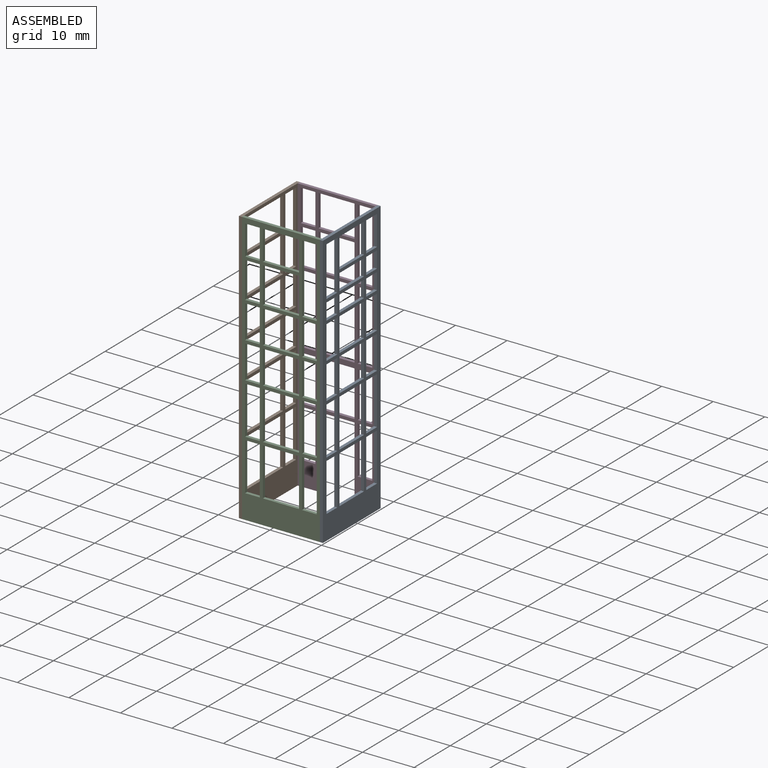
[diagram: assembled view]
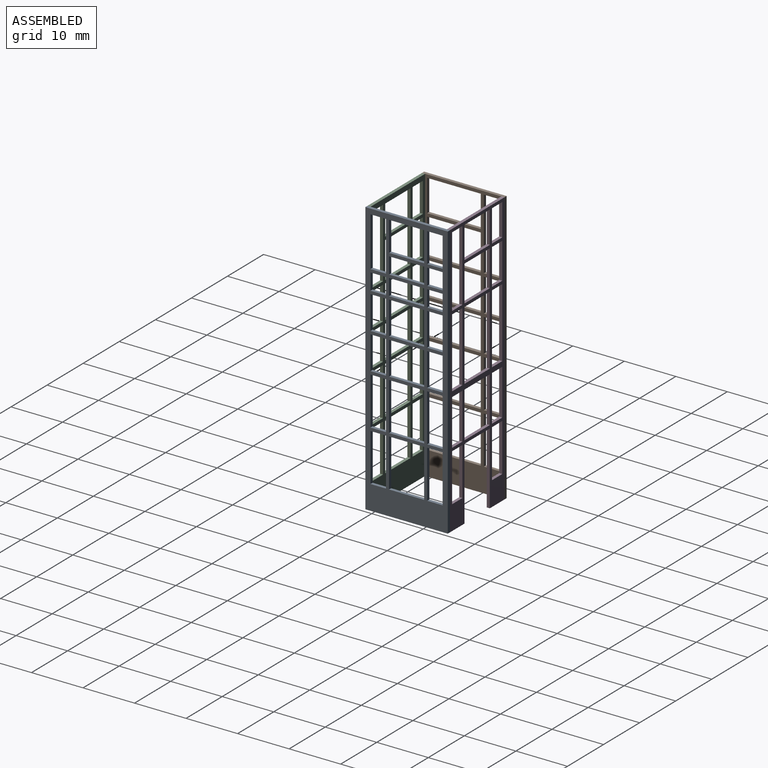
[diagram: assembled view, second angle]
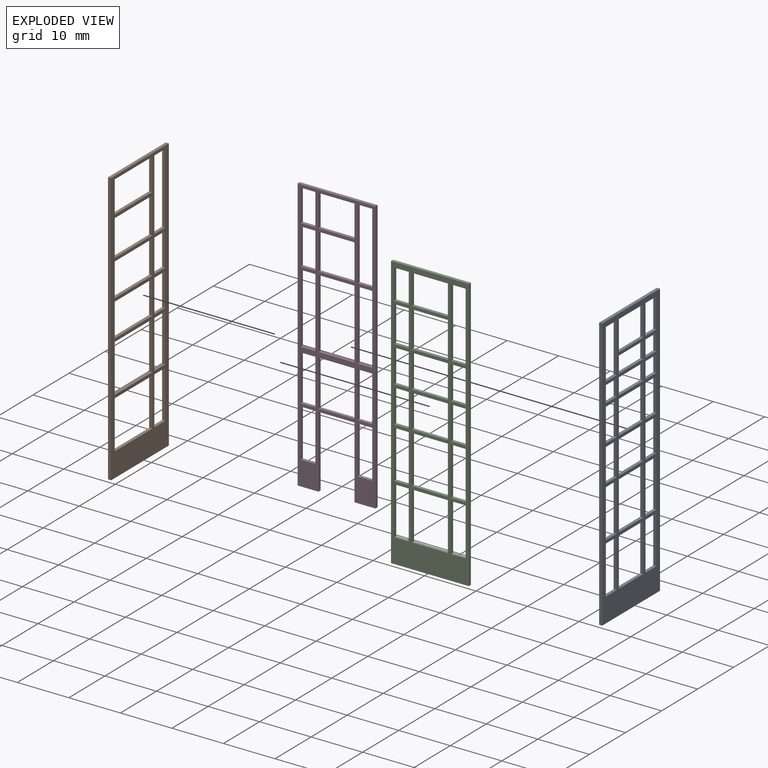
[diagram: exploded view]
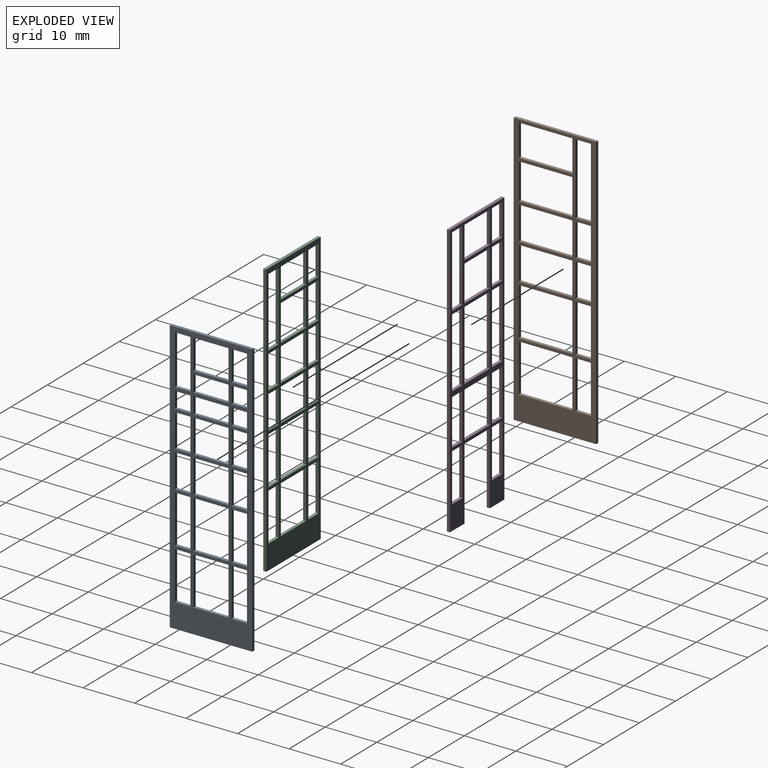
[diagram: exploded view, second angle]
ASSEMBLY  parts=4 mates=3
PART A: 86 faces, bbox 16x0.6x53 mm
  f0: plane 53x16mm, normal (0,-1,0), area 286.8mm2, adj f2,f3,f4,f5,f6,f7,f8,f9
  f1: plane 53x16mm, normal (0,1,0), area 286.8mm2, adj f2,f3,f4,f5,f6,f7,f8,f9
  f2: plane 9.3x0.6mm, normal (-1,0,0), area 5.6mm2, adj f0,f1,f3,f16
  f3: plane 6.8x0.6mm, normal (0,0,1), area 4.1mm2, adj f0,f1,f2,f4
  f4: plane 9.3x0.6mm, normal (1,0,0), area 5.6mm2, adj f0,f1,f3,f16
  f5: plane 9.3x0.6mm, normal (1,0,0), area 5.6mm2, adj f0,f1,f6,f14
  f6: plane 3x0.6mm, normal (0,0,-1), area 1.8mm2, adj f0,f1,f5,f7
  f7: plane 9.3x0.6mm, normal (-1,0,0), area 5.6mm2, adj f0,f1,f6,f14
  f8: plane 9.3x0.6mm, normal (1,0,0), area 5.6mm2, adj f0,f1,f9,f15
  f9: plane 3x0.6mm, normal (0,0,-1), area 1.8mm2, adj f0,f1,f8,f10
  f10: plane 9.3x0.6mm, normal (-1,0,0), area 5.6mm2, adj f0,f1,f9,f15
  f11: plane 53x0.6mm, normal (-1,0,0), area 31.8mm2, adj f0,f1,f12,f85
  f12: plane 16x0.6mm, normal (0,0,-1), area 9.6mm2, adj f0,f1,f11,f13
  f13: plane 53x0.6mm, normal (1,0,0), area 31.8mm2, adj f0,f1,f12,f85
  f14: plane 3x0.6mm, normal (0,0,1), area 1.8mm2, adj f0,f1,f5,f7
  f15: plane 3x0.6mm, normal (0,0,1), area 1.8mm2, adj f0,f1,f8,f10
  f16: plane 6.8x0.6mm, normal (0,0,-1), area 4.1mm2, adj f0,f1,f2,f4
  f17: plane 6.45x0.6mm, normal (1,0,0), area 3.9mm2, adj f0,f1,f18,f19
  f18: plane 3x0.6mm, normal (0,0,-1), area 1.8mm2, adj f0,f1,f17,f20
  f19: plane 3x0.6mm, normal (0,0,1), area 1.8mm2, adj f0,f1,f17,f20
  f20: plane 6.45x0.6mm, normal (-1,0,0), area 3.9mm2, adj f0,f1,f18,f19
  f21: plane 9.3x0.6mm, normal (-1,0,0), area 5.6mm2, adj f0,f1,f22,f23
  f22: plane 3x0.6mm, normal (0,0,1), area 1.8mm2, adj f0,f1,f21,f24
  f23: plane 3x0.6mm, normal (0,0,-1), area 1.8mm2, adj f0,f1,f21,f24
  f24: plane 9.3x0.6mm, normal (1,0,0), area 5.6mm2, adj f0,f1,f22,f23
  f25: plane 6.8x0.6mm, normal (0,0,-1), area 4.1mm2, adj f0,f1,f26,f27
  f26: plane 9.3x0.6mm, normal (-1,0,0), area 5.6mm2, adj f0,f1,f25,f28
  f27: plane 9.3x0.6mm, normal (1,0,0), area 5.6mm2, adj f0,f1,f25,f28
  f28: plane 6.8x0.6mm, normal (0,0,1), area 4.1mm2, adj f0,f1,f26,f27
  f29: plane 3x0.6mm, normal (0,0,-1), area 1.8mm2, adj f0,f1,f30,f31
  f30: plane 9.3x0.6mm, normal (-1,0,0), area 5.6mm2, adj f0,f1,f29,f32
  f31: plane 9.3x0.6mm, normal (1,0,0), area 5.6mm2, adj f0,f1,f29,f32
  f32: plane 3x0.6mm, normal (0,0,1), area 1.8mm2, adj f0,f1,f30,f31
  f33: plane 6.45x0.6mm, normal (-1,0,0), area 3.9mm2, adj f0,f1,f34,f36
  f34: plane 3x0.6mm, normal (0,0,-1), area 1.8mm2, adj f0,f1,f33,f35
  f35: plane 6.45x0.6mm, normal (1,0,0), area 3.9mm2, adj f0,f1,f34,f36
  f36: plane 3x0.6mm, normal (0,0,1), area 1.8mm2, adj f0,f1,f33,f35
  f37: plane 6.45x0.6mm, normal (-1,0,0), area 3.9mm2, adj f0,f1,f38,f40
  f38: plane 3x0.6mm, normal (0,0,-1), area 1.8mm2, adj f0,f1,f37,f39
  f39: plane 6.45x0.6mm, normal (1,0,0), area 3.9mm2, adj f0,f1,f38,f40
  f40: plane 3x0.6mm, normal (0,0,1), area 1.8mm2, adj f0,f1,f37,f39
  f41: plane 6.45x0.6mm, normal (1,0,0), area 3.9mm2, adj f0,f1,f42,f43
  f42: plane 6.8x0.6mm, normal (0,0,-1), area 4.1mm2, adj f0,f1,f41,f44
  f43: plane 6.8x0.6mm, normal (0,0,1), area 4.1mm2, adj f0,f1,f41,f44
  f44: plane 6.45x0.6mm, normal (-1,0,0), area 3.9mm2, adj f0,f1,f42,f43
  f45: plane 6.45x0.6mm, normal (1,0,0), area 3.9mm2, adj f0,f1,f46,f47
  f46: plane 6.8x0.6mm, normal (0,0,-1), area 4.1mm2, adj f0,f1,f45,f48
  f47: plane 6.8x0.6mm, normal (0,0,1), area 4.1mm2, adj f0,f1,f45,f48
  f48: plane 6.45x0.6mm, normal (-1,0,0), area 3.9mm2, adj f0,f1,f46,f47
  f49: plane 6.45x0.6mm, normal (-1,0,0), area 3.9mm2, adj f0,f1,f50,f52
  f50: plane 3x0.6mm, normal (0,0,-1), area 1.8mm2, adj f0,f1,f49,f51
  f51: plane 6.45x0.6mm, normal (1,0,0), area 3.9mm2, adj f0,f1,f50,f52
  f52: plane 3x0.6mm, normal (0,0,1), area 1.8mm2, adj f0,f1,f49,f51
  f53: plane 5.8x0.6mm, normal (1,0,0), area 3.5mm2, adj f0,f1,f54,f55
  f54: plane 3x0.6mm, normal (0,0,-1), area 1.8mm2, adj f0,f1,f53,f56
  f55: plane 3x0.6mm, normal (0,0,1), area 1.8mm2, adj f0,f1,f53,f56
  f56: plane 5.8x0.6mm, normal (-1,0,0), area 3.5mm2, adj f0,f1,f54,f55
  f57: plane 3.2x0.6mm, normal (1,0,0), area 1.9mm2, adj f0,f1,f58,f59
  f58: plane 6.8x0.6mm, normal (0,0,-1), area 4.1mm2, adj f0,f1,f57,f60
  f59: plane 6.8x0.6mm, normal (0,0,1), area 4.1mm2, adj f0,f1,f57,f60
  f60: plane 3.2x0.6mm, normal (-1,0,0), area 1.9mm2, adj f0,f1,f58,f59
  f61: plane 5.8x0.6mm, normal (1,0,0), area 3.5mm2, adj f0,f1,f62,f63
  f62: plane 6.8x0.6mm, normal (0,0,-1), area 4.1mm2, adj f0,f1,f61,f64
  f63: plane 6.8x0.6mm, normal (0,0,1), area 4.1mm2, adj f0,f1,f61,f64
  f64: plane 5.8x0.6mm, normal (-1,0,0), area 3.5mm2, adj f0,f1,f62,f63
  f65: plane 9.6x0.6mm, normal (1,0,0), area 5.8mm2, adj f0,f1,f66,f67
  f66: plane 3x0.6mm, normal (0,0,-1), area 1.8mm2, adj f0,f1,f65,f68
  f67: plane 3x0.6mm, normal (0,0,1), area 1.8mm2, adj f0,f1,f65,f68
  f68: plane 9.6x0.6mm, normal (-1,0,0), area 5.8mm2, adj f0,f1,f66,f67
  f69: plane 3.2x0.6mm, normal (1,0,0), area 1.9mm2, adj f0,f1,f70,f71
  f70: plane 3x0.6mm, normal (0,0,-1), area 1.8mm2, adj f0,f1,f69,f72
  f71: plane 3x0.6mm, normal (0,0,1), area 1.8mm2, adj f0,f1,f69,f72
  f72: plane 3.2x0.6mm, normal (-1,0,0), area 1.9mm2, adj f0,f1,f70,f71
  f73: plane 3.2x0.6mm, normal (1,0,0), area 1.9mm2, adj f0,f1,f74,f75
  f74: plane 3x0.6mm, normal (0,0,-1), area 1.8mm2, adj f0,f1,f73,f76
  f75: plane 3x0.6mm, normal (0,0,1), area 1.8mm2, adj f0,f1,f73,f76
  f76: plane 3.2x0.6mm, normal (-1,0,0), area 1.9mm2, adj f0,f1,f74,f75
  f77: plane 3.2x0.6mm, normal (1,0,0), area 1.9mm2, adj f0,f1,f78,f79
  f78: plane 6.8x0.6mm, normal (0,0,-1), area 4.1mm2, adj f0,f1,f77,f80
  f79: plane 6.8x0.6mm, normal (0,0,1), area 4.1mm2, adj f0,f1,f77,f80
  f80: plane 3.2x0.6mm, normal (-1,0,0), area 1.9mm2, adj f0,f1,f78,f79
  f81: plane 3.2x0.6mm, normal (1,0,0), area 1.9mm2, adj f0,f1,f82,f83
  f82: plane 3x0.6mm, normal (0,0,-1), area 1.8mm2, adj f0,f1,f81,f84
  f83: plane 3x0.6mm, normal (0,0,1), area 1.8mm2, adj f0,f1,f81,f84
  f84: plane 3.2x0.6mm, normal (-1,0,0), area 1.9mm2, adj f0,f1,f82,f83
  f85: plane 16x0.6mm, normal (0,0,1), area 9.6mm2, adj f0,f1,f11,f13
PART B: 50 faces, bbox 16x0.6x53 mm
  f0: plane 53x16mm, normal (0,-1,0), area 247.2mm2, adj f1,f2,f3,f4,f5,f6,f7,f8
  f1: plane 53x0.6mm, normal (-1,0,0), area 31.8mm2, adj f0,f2,f10,f42
  f2: plane 16x0.6mm, normal (0,0,-1), area 9.6mm2, adj f0,f1,f10,f49
  f3: plane 10.4x0.6mm, normal (0,0,1), area 6.2mm2, adj f0,f4,f10,f48
  f4: plane 9.3x0.6mm, normal (1,0,0), area 5.6mm2, adj f0,f3,f5,f10
  f5: plane 10.4x0.6mm, normal (0,0,-1), area 6.2mm2, adj f0,f4,f10,f48
  f6: plane 9.3x0.6mm, normal (1,0,0), area 5.6mm2, adj f0,f7,f9,f10
  f7: plane 3x0.6mm, normal (0,0,-1), area 1.8mm2, adj f0,f6,f8,f10
  f8: plane 9.3x0.6mm, normal (-1,0,0), area 5.6mm2, adj f0,f7,f9,f10
  f9: plane 3x0.6mm, normal (0,0,1), area 1.8mm2, adj f0,f6,f8,f10
  f10: plane 53x16mm, normal (0,1,0), area 247.2mm2, adj f1,f2,f3,f4,f5,f6,f7,f8
  f11: plane 6.45x0.6mm, normal (1,0,0), area 3.9mm2, adj f0,f10,f12,f13
  f12: plane 3x0.6mm, normal (0,0,-1), area 1.8mm2, adj f0,f10,f11,f14
  f13: plane 3x0.6mm, normal (0,0,1), area 1.8mm2, adj f0,f10,f11,f14
  f14: plane 6.45x0.6mm, normal (-1,0,0), area 3.9mm2, adj f0,f10,f12,f13
  f15: plane 10.4x0.6mm, normal (0,0,-1), area 6.2mm2, adj f0,f10,f16,f44
  f16: plane 6.45x0.6mm, normal (1,0,0), area 3.9mm2, adj f0,f10,f15,f17
  f17: plane 10.4x0.6mm, normal (0,0,1), area 6.2mm2, adj f0,f10,f16,f44
  f18: plane 13.8x0.6mm, normal (1,0,0), area 8.3mm2, adj f0,f10,f19,f20
  f19: plane 3x0.6mm, normal (0,0,-1), area 1.8mm2, adj f0,f10,f18,f21
  f20: plane 3x0.6mm, normal (0,0,1), area 1.8mm2, adj f0,f10,f18,f21
  f21: plane 13.8x0.6mm, normal (-1,0,0), area 8.3mm2, adj f0,f10,f19,f20
  f22: plane 10.4x0.6mm, normal (0,0,-1), area 6.2mm2, adj f0,f10,f23,f46
  f23: plane 7x0.6mm, normal (1,0,0), area 4.2mm2, adj f0,f10,f22,f24
  f24: plane 10.4x0.6mm, normal (0,0,1), area 6.2mm2, adj f0,f10,f23,f46
  f25: plane 10.4x0.6mm, normal (0,0,-1), area 6.2mm2, adj f0,f10,f26,f45
  f26: plane 6.2x0.6mm, normal (1,0,0), area 3.7mm2, adj f0,f10,f25,f27
  f27: plane 10.4x0.6mm, normal (0,0,1), area 6.2mm2, adj f0,f10,f26,f45
  f28: plane 10.4x0.6mm, normal (0,0,-1), area 6.2mm2, adj f0,f10,f29,f43
  f29: plane 6.45x0.6mm, normal (1,0,0), area 3.9mm2, adj f0,f10,f28,f30
  f30: plane 10.4x0.6mm, normal (0,0,1), area 6.2mm2, adj f0,f10,f29,f43
  f31: plane 9.3x0.6mm, normal (1,0,0), area 5.6mm2, adj f0,f10,f32,f33
  f32: plane 3x0.6mm, normal (0,0,-1), area 1.8mm2, adj f0,f10,f31,f34
  f33: plane 3x0.6mm, normal (0,0,1), area 1.8mm2, adj f0,f10,f31,f34
  f34: plane 9.3x0.6mm, normal (-1,0,0), area 5.6mm2, adj f0,f10,f32,f33
  f35: plane 10.4x0.6mm, normal (0,0,-1), area 6.2mm2, adj f0,f10,f36,f47
  f36: plane 9.3x0.6mm, normal (1,0,0), area 5.6mm2, adj f0,f10,f35,f37
  f37: plane 10.4x0.6mm, normal (0,0,1), area 6.2mm2, adj f0,f10,f36,f47
  f38: plane 6.45x0.6mm, normal (1,0,0), area 3.9mm2, adj f0,f10,f39,f40
  f39: plane 3x0.6mm, normal (0,0,-1), area 1.8mm2, adj f0,f10,f38,f41
  f40: plane 3x0.6mm, normal (0,0,1), area 1.8mm2, adj f0,f10,f38,f41
  f41: plane 6.45x0.6mm, normal (-1,0,0), area 3.9mm2, adj f0,f10,f39,f40
  f42: plane 16x0.6mm, normal (0,0,1), area 9.6mm2, adj f0,f1,f10,f49
  f43: plane 6.45x0.6mm, normal (-1,0,0), area 3.9mm2, adj f0,f10,f28,f30
  f44: plane 6.45x0.6mm, normal (-1,0,0), area 3.9mm2, adj f0,f10,f15,f17
  f45: plane 6.2x0.6mm, normal (-1,0,0), area 3.7mm2, adj f0,f10,f25,f27
  f46: plane 7x0.6mm, normal (-1,0,0), area 4.2mm2, adj f0,f10,f22,f24
  f47: plane 9.3x0.6mm, normal (-1,0,0), area 5.6mm2, adj f0,f10,f35,f37
  f48: plane 9.3x0.6mm, normal (-1,0,0), area 5.6mm2, adj f0,f3,f5,f10
  f49: plane 53x0.6mm, normal (1,0,0), area 31.8mm2, adj f0,f2,f10,f42
PART C: 74 faces, bbox 15.1x0.6x53 mm
  f0: plane 53x15.1mm, normal (0,-1,0), area 236mm2, adj f2,f3,f4,f5,f6,f7,f8,f9
  f1: plane 53x15.1mm, normal (0,1,0), area 236mm2, adj f2,f3,f4,f5,f6,f7,f8,f9
  f2: plane 7x0.6mm, normal (0,0,1), area 4.2mm2, adj f0,f1,f3,f14
  f3: plane 9.3x0.6mm, normal (1,0,0), area 5.6mm2, adj f0,f1,f2,f4
  f4: plane 7x0.6mm, normal (0,0,-1), area 4.2mm2, adj f0,f1,f3,f14
  f5: plane 53x0.6mm, normal (-1,0,0), area 31.8mm2, adj f0,f1,f6,f67
  f6: plane 15.1x0.6mm, normal (0,0,-1), area 9.1mm2, adj f0,f1,f5,f73
  f7: plane 2.85x0.6mm, normal (0,0,1), area 1.7mm2, adj f0,f1,f8,f72
  f8: plane 9.3x0.6mm, normal (1,0,0), area 5.6mm2, adj f0,f1,f7,f9
  f9: plane 2.85x0.6mm, normal (0,0,-1), area 1.7mm2, adj f0,f1,f8,f72
  f10: plane 9.3x0.6mm, normal (1,0,0), area 5.6mm2, adj f0,f1,f11,f13
  f11: plane 2.85x0.6mm, normal (0,0,-1), area 1.7mm2, adj f0,f1,f10,f12
  f12: plane 9.3x0.6mm, normal (-1,0,0), area 5.6mm2, adj f0,f1,f11,f13
  f13: plane 2.85x0.6mm, normal (0,0,1), area 1.7mm2, adj f0,f1,f10,f12
  f14: plane 9.3x0.6mm, normal (-1,0,0), area 5.6mm2, adj f0,f1,f2,f4
  f15: plane 6.45x0.6mm, normal (1,0,0), area 3.9mm2, adj f0,f1,f16,f17
  f16: plane 2.85x0.6mm, normal (0,0,-1), area 1.7mm2, adj f0,f1,f15,f18
  f17: plane 2.85x0.6mm, normal (0,0,1), area 1.7mm2, adj f0,f1,f15,f18
  f18: plane 6.45x0.6mm, normal (-1,0,0), area 3.9mm2, adj f0,f1,f16,f17
  f19: plane 2.85x0.6mm, normal (0,0,-1), area 1.7mm2, adj f0,f1,f20,f71
  f20: plane 9.3x0.6mm, normal (1,0,0), area 5.6mm2, adj f0,f1,f19,f21
  f21: plane 2.85x0.6mm, normal (0,0,1), area 1.7mm2, adj f0,f1,f20,f71
  f22: plane 6.45x0.6mm, normal (1,0,0), area 3.9mm2, adj f0,f1,f23,f24
  f23: plane 2.85x0.6mm, normal (0,0,-1), area 1.7mm2, adj f0,f1,f22,f25
  f24: plane 2.85x0.6mm, normal (0,0,1), area 1.7mm2, adj f0,f1,f22,f25
  f25: plane 6.45x0.6mm, normal (-1,0,0), area 3.9mm2, adj f0,f1,f23,f24
  f26: plane 6.45x0.6mm, normal (1,0,0), area 3.9mm2, adj f0,f1,f27,f28
  f27: plane 7x0.6mm, normal (0,0,-1), area 4.2mm2, adj f0,f1,f26,f29
  f28: plane 7x0.6mm, normal (0,0,1), area 4.2mm2, adj f0,f1,f26,f29
  f29: plane 6.45x0.6mm, normal (-1,0,0), area 3.9mm2, adj f0,f1,f27,f28
  f30: plane 2.85x0.6mm, normal (0,0,-1), area 1.7mm2, adj f0,f1,f31,f68
  f31: plane 6.45x0.6mm, normal (1,0,0), area 3.9mm2, adj f0,f1,f30,f32
  f32: plane 2.85x0.6mm, normal (0,0,1), area 1.7mm2, adj f0,f1,f31,f68
  f33: plane 9.3x0.6mm, normal (1,0,0), area 5.6mm2, adj f0,f1,f34,f35
  f34: plane 7x0.6mm, normal (0,0,-1), area 4.2mm2, adj f0,f1,f33,f36
  f35: plane 7x0.6mm, normal (0,0,1), area 4.2mm2, adj f0,f1,f33,f36
  f36: plane 9.3x0.6mm, normal (-1,0,0), area 5.6mm2, adj f0,f1,f34,f35
  f37: plane 9.3x0.6mm, normal (1,0,0), area 5.6mm2, adj f0,f1,f38,f39
  f38: plane 2.85x0.6mm, normal (0,0,-1), area 1.7mm2, adj f0,f1,f37,f40
  f39: plane 2.85x0.6mm, normal (0,0,1), area 1.7mm2, adj f0,f1,f37,f40
  f40: plane 9.3x0.6mm, normal (-1,0,0), area 5.6mm2, adj f0,f1,f38,f39
  f41: plane 2.85x0.6mm, normal (0,0,-1), area 1.7mm2, adj f0,f1,f42,f70
  f42: plane 6.45x0.6mm, normal (1,0,0), area 3.9mm2, adj f0,f1,f41,f43
  f43: plane 2.85x0.6mm, normal (0,0,1), area 1.7mm2, adj f0,f1,f42,f70
  f44: plane 6.45x0.6mm, normal (1,0,0), area 3.9mm2, adj f0,f1,f45,f46
  f45: plane 7x0.6mm, normal (0,0,-1), area 4.2mm2, adj f0,f1,f44,f47
  f46: plane 7x0.6mm, normal (0,0,1), area 4.2mm2, adj f0,f1,f44,f47
  f47: plane 6.45x0.6mm, normal (-1,0,0), area 3.9mm2, adj f0,f1,f45,f46
  f48: plane 2.85x0.6mm, normal (0,0,-1), area 1.7mm2, adj f0,f1,f49,f50
  f49: plane 5.8x0.6mm, normal (-1,0,0), area 3.5mm2, adj f0,f1,f48,f51
  f50: plane 5.8x0.6mm, normal (1,0,0), area 3.5mm2, adj f0,f1,f48,f51
  f51: plane 2.85x0.6mm, normal (0,0,1), area 1.7mm2, adj f0,f1,f49,f50
  f52: plane 7x0.6mm, normal (1,0,0), area 4.2mm2, adj f0,f1,f53,f54
  f53: plane 2.85x0.6mm, normal (0,0,-1), area 1.7mm2, adj f0,f1,f52,f55
  f54: plane 2.85x0.6mm, normal (0,0,1), area 1.7mm2, adj f0,f1,f52,f55
  f55: plane 7x0.6mm, normal (-1,0,0), area 4.2mm2, adj f0,f1,f53,f54
  f56: plane 7x0.6mm, normal (1,0,0), area 4.2mm2, adj f0,f1,f57,f58
  f57: plane 7x0.6mm, normal (0,0,-1), area 4.2mm2, adj f0,f1,f56,f59
  f58: plane 7x0.6mm, normal (0,0,1), area 4.2mm2, adj f0,f1,f56,f59
  f59: plane 7x0.6mm, normal (-1,0,0), area 4.2mm2, adj f0,f1,f57,f58
  f60: plane 2.85x0.6mm, normal (0,0,-1), area 1.7mm2, adj f0,f1,f61,f69
  f61: plane 13.4x0.6mm, normal (1,0,0), area 8mm2, adj f0,f1,f60,f62
  f62: plane 2.85x0.6mm, normal (0,0,1), area 1.7mm2, adj f0,f1,f61,f69
  f63: plane 7x0.6mm, normal (0,0,-1), area 4.2mm2, adj f0,f1,f64,f65
  f64: plane 5.8x0.6mm, normal (-1,0,0), area 3.5mm2, adj f0,f1,f63,f66
  f65: plane 5.8x0.6mm, normal (1,0,0), area 3.5mm2, adj f0,f1,f63,f66
  f66: plane 7x0.6mm, normal (0,0,1), area 4.2mm2, adj f0,f1,f64,f65
  f67: plane 15.1x0.6mm, normal (0,0,1), area 9.1mm2, adj f0,f1,f5,f73
  f68: plane 6.45x0.6mm, normal (-1,0,0), area 3.9mm2, adj f0,f1,f30,f32
  f69: plane 13.4x0.6mm, normal (-1,0,0), area 8mm2, adj f0,f1,f60,f62
  f70: plane 6.45x0.6mm, normal (-1,0,0), area 3.9mm2, adj f0,f1,f41,f43
  f71: plane 9.3x0.6mm, normal (-1,0,0), area 5.6mm2, adj f0,f1,f19,f21
  f72: plane 9.3x0.6mm, normal (-1,0,0), area 5.6mm2, adj f0,f1,f7,f9
  f73: plane 53x0.6mm, normal (1,0,0), area 31.8mm2, adj f0,f1,f6,f67
PART D: 62 faces, bbox 15.1x0.6x53 mm
  f0: plane 53x15.1mm, normal (0,-1,0), area 195.5mm2, adj f2,f3,f4,f5,f6,f7,f8,f9
  f1: plane 53x15.1mm, normal (0,1,0), area 195.5mm2, adj f2,f3,f4,f5,f6,f7,f8,f9
  f2: plane 53x0.6mm, normal (-1,0,0), area 31.8mm2, adj f0,f1,f3,f56
  f3: plane 4.05x0.6mm, normal (0,0,-1), area 2.4mm2, adj f0,f1,f2,f4
  f4: plane 14x0.6mm, normal (1,0,0), area 8.4mm2, adj f0,f1,f3,f5
  f5: plane 7x0.6mm, normal (0,0,-1), area 4.2mm2, adj f0,f1,f4,f6
  f6: plane 14x0.6mm, normal (-1,0,0), area 8.4mm2, adj f0,f1,f5,f7
  f7: plane 4.05x0.6mm, normal (0,0,-1), area 2.4mm2, adj f0,f1,f6,f61
  f8: plane 2.85x0.6mm, normal (0,0,1), area 1.7mm2, adj f0,f1,f9,f60
  f9: plane 9.3x0.6mm, normal (1,0,0), area 5.6mm2, adj f0,f1,f8,f10
  f10: plane 2.85x0.6mm, normal (0,0,-1), area 1.7mm2, adj f0,f1,f9,f60
  f11: plane 9.3x0.6mm, normal (1,0,0), area 5.6mm2, adj f0,f1,f12,f14
  f12: plane 2.85x0.6mm, normal (0,0,-1), area 1.7mm2, adj f0,f1,f11,f13
  f13: plane 9.3x0.6mm, normal (-1,0,0), area 5.6mm2, adj f0,f1,f12,f14
  f14: plane 2.85x0.6mm, normal (0,0,1), area 1.7mm2, adj f0,f1,f11,f13
  f15: plane 2.85x0.6mm, normal (0,0,1), area 1.7mm2, adj f0,f1,f16,f17
  f16: plane 13.5x0.6mm, normal (1,0,0), area 8.1mm2, adj f0,f1,f15,f18
  f17: plane 13.5x0.6mm, normal (-1,0,0), area 8.1mm2, adj f0,f1,f15,f18
  f18: plane 2.85x0.6mm, normal (0,0,-1), area 1.7mm2, adj f0,f1,f16,f17
  f19: plane 6.2x0.6mm, normal (1,0,0), area 3.7mm2, adj f0,f1,f20,f21
  f20: plane 2.85x0.6mm, normal (0,0,-1), area 1.7mm2, adj f0,f1,f19,f22
  f21: plane 2.85x0.6mm, normal (0,0,1), area 1.7mm2, adj f0,f1,f19,f22
  f22: plane 6.2x0.6mm, normal (-1,0,0), area 3.7mm2, adj f0,f1,f20,f21
  f23: plane 6.2x0.6mm, normal (1,0,0), area 3.7mm2, adj f0,f1,f24,f25
  f24: plane 7x0.6mm, normal (0,0,-1), area 4.2mm2, adj f0,f1,f23,f26
  f25: plane 7x0.6mm, normal (0,0,1), area 4.2mm2, adj f0,f1,f23,f26
  f26: plane 6.2x0.6mm, normal (-1,0,0), area 3.7mm2, adj f0,f1,f24,f25
  f27: plane 7x0.6mm, normal (0,0,1), area 4.2mm2, adj f0,f1,f28,f29
  f28: plane 13.5x0.6mm, normal (1,0,0), area 8.1mm2, adj f0,f1,f27,f30
  f29: plane 13.5x0.6mm, normal (-1,0,0), area 8.1mm2, adj f0,f1,f27,f30
  f30: plane 7x0.6mm, normal (0,0,-1), area 4.2mm2, adj f0,f1,f28,f29
  f31: plane 13.5x0.6mm, normal (1,0,0), area 8.1mm2, adj f0,f1,f32,f33
  f32: plane 2.85x0.6mm, normal (0,0,-1), area 1.7mm2, adj f0,f1,f31,f57
  f33: plane 2.85x0.6mm, normal (0,0,1), area 1.7mm2, adj f0,f1,f31,f57
  f34: plane 2.85x0.6mm, normal (0,0,-1), area 1.7mm2, adj f0,f1,f35,f59
  f35: plane 8.9x0.6mm, normal (1,0,0), area 5.3mm2, adj f0,f1,f34,f36
  f36: plane 2.85x0.6mm, normal (0,0,1), area 1.7mm2, adj f0,f1,f35,f59
  f37: plane 8.9x0.6mm, normal (1,0,0), area 5.3mm2, adj f0,f1,f38,f39
  f38: plane 7x0.6mm, normal (0,0,-1), area 4.2mm2, adj f0,f1,f37,f40
  f39: plane 7x0.6mm, normal (0,0,1), area 4.2mm2, adj f0,f1,f37,f40
  f40: plane 8.9x0.6mm, normal (-1,0,0), area 5.3mm2, adj f0,f1,f38,f39
  f41: plane 7x0.6mm, normal (1,0,0), area 4.2mm2, adj f0,f1,f42,f43
  f42: plane 2.85x0.6mm, normal (0,0,-1), area 1.7mm2, adj f0,f1,f41,f44
  f43: plane 2.85x0.6mm, normal (0,0,1), area 1.7mm2, adj f0,f1,f41,f44
  f44: plane 7x0.6mm, normal (-1,0,0), area 4.2mm2, adj f0,f1,f42,f43
  f45: plane 7x0.6mm, normal (1,0,0), area 4.2mm2, adj f0,f1,f46,f47
  f46: plane 7x0.6mm, normal (0,0,-1), area 4.2mm2, adj f0,f1,f45,f48
  f47: plane 7x0.6mm, normal (0,0,1), area 4.2mm2, adj f0,f1,f45,f48
  f48: plane 7x0.6mm, normal (-1,0,0), area 4.2mm2, adj f0,f1,f46,f47
  f49: plane 2.85x0.6mm, normal (0,0,-1), area 1.7mm2, adj f0,f1,f50,f58
  f50: plane 13.8x0.6mm, normal (1,0,0), area 8.3mm2, adj f0,f1,f49,f51
  f51: plane 2.85x0.6mm, normal (0,0,1), area 1.7mm2, adj f0,f1,f50,f58
  f52: plane 8.9x0.6mm, normal (1,0,0), area 5.3mm2, adj f0,f1,f53,f54
  f53: plane 2.85x0.6mm, normal (0,0,-1), area 1.7mm2, adj f0,f1,f52,f55
  f54: plane 2.85x0.6mm, normal (0,0,1), area 1.7mm2, adj f0,f1,f52,f55
  f55: plane 8.9x0.6mm, normal (-1,0,0), area 5.3mm2, adj f0,f1,f53,f54
  f56: plane 15.1x0.6mm, normal (0,0,1), area 9.1mm2, adj f0,f1,f2,f61
  f57: plane 13.5x0.6mm, normal (-1,0,0), area 8.1mm2, adj f0,f1,f32,f33
  f58: plane 13.8x0.6mm, normal (-1,0,0), area 8.3mm2, adj f0,f1,f49,f51
  f59: plane 8.9x0.6mm, normal (-1,0,0), area 5.3mm2, adj f0,f1,f34,f36
  f60: plane 9.3x0.6mm, normal (-1,0,0), area 5.6mm2, adj f0,f1,f8,f10
  f61: plane 53x0.6mm, normal (1,0,0), area 31.8mm2, adj f0,f1,f7,f56
PLACE A rot(axis=(0,0,1),90deg) t=(10.17,-0.69,1.89)mm
PLACE B rot(axis=(0,0,-1),90deg) t=(-4.93,15.31,1.89)mm
PLACE C t=(-4.93,-0.09,1.89)mm
PLACE D t=(-4.93,15.31,1.89)mm
MATE fastened B.f10 <-> D.f2  axis (1,0,0) through (-4.93,15.31,54.89)mm
MATE fastened C.f5 <-> B.f10  axis (-1,0,0) through (-4.93,-0.69,54.89)mm
MATE fastened A.f1 <-> D.f61  axis (-1,0,0) through (10.17,15.31,54.89)mm
